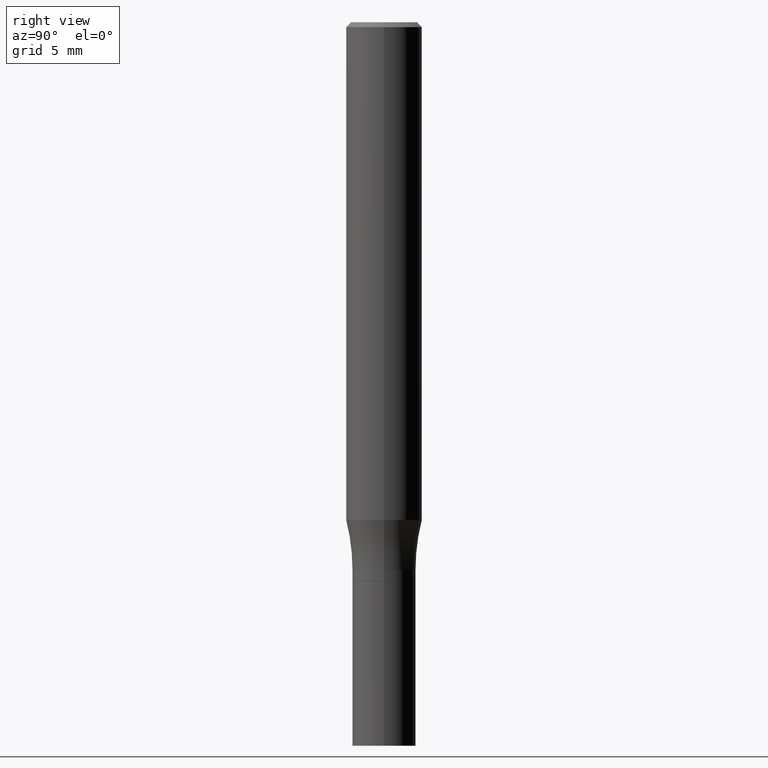
[diagram: clean part render]
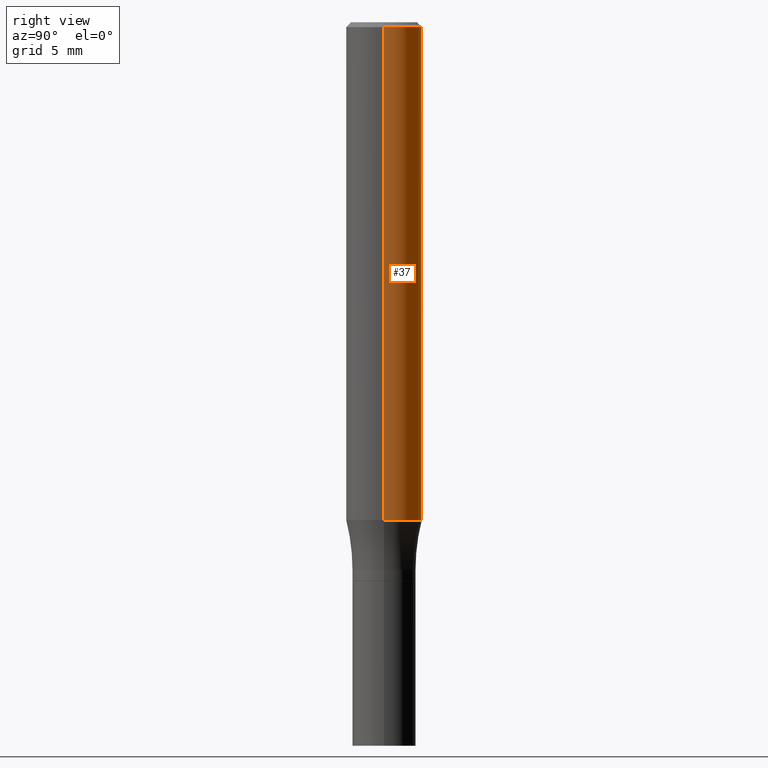
[diagram: same view with one face highlighted and labeled with its STEP entity id]
A machine part, right view. The second image highlights one B-rep face of the part: STEP entity #37.
In plain terms, the highlighted cylindrical surface (partial cylindrical patch) has radius 2.9997 mm, axis along (-0, 0, 1).
Its self-contained STEP definition (entity closure, byte-faithful):
#10 = CARTESIAN_POINT ( 'NONE',  ( -0.1180999999999999966, -4.550343100563697850E-15, -1.543612452267068891 ) ) ;
#28 = FACE_OUTER_BOUND ( 'NONE', #49, .T. ) ;
#37 = ADVANCED_FACE ( 'NONE', ( #28 ), #93, .T. ) ;
#41 = EDGE_CURVE ( 'NONE', #301, #456, #90, .T. ) ;
#43 = DIRECTION ( 'NONE',  ( -2.445468806185136597E-29, 3.491481338843145583E-15, 1.000000000000000000 ) ) ;
#49 = EDGE_LOOP ( 'NONE', ( #382, #347, #193, #235 ) ) ;
#58 = VERTEX_POINT ( 'NONE', #249 ) ;
#70 = VECTOR ( 'NONE', #238, 39.37007874015748143 ) ;
#90 = LINE ( 'NONE', #199, #70 ) ;
#93 = CYLINDRICAL_SURFACE ( 'NONE', #280, 0.1181000000000000105 ) ;
#110 = CARTESIAN_POINT ( 'NONE',  ( 3.774856100858060618E-29, -5.389494071496376836E-15, -1.543612452267068891 ) ) ;
#131 = EDGE_CURVE ( 'NONE', #58, #301, #310, .T. ) ;
#148 = CARTESIAN_POINT ( 'NONE',  ( 0.1181000000000000105, -8.246878922347482626E-16, 5.758764772215001141E-30 ) ) ;
#157 = AXIS2_PLACEMENT_3D ( 'NONE', #110, #221, #369 ) ;
#182 = DIRECTION ( 'NONE',  ( -2.445468806185136877E-29, 3.491481338843145188E-15, 1.000000000000000000 ) ) ;
#188 = EDGE_CURVE ( 'NONE', #58, #423, #218, .T. ) ;
#190 = AXIS2_PLACEMENT_3D ( 'NONE', #407, #43, #215 ) ;
#193 = ORIENTED_EDGE ( 'NONE', *, *, #395, .F. ) ;
#199 = CARTESIAN_POINT ( 'NONE',  ( -0.1181000000000000105, 8.391509709326783943E-16, -5.809262341591044484E-30 ) ) ;
#215 = DIRECTION ( 'NONE',  ( 1.000000000000000000, -6.982962677686266711E-15, 0.000000000000000000 ) ) ;
#218 = LINE ( 'NONE', #148, #367 ) ;
#221 = DIRECTION ( 'NONE',  ( -2.445468806185136597E-29, 3.491481338843145583E-15, 1.000000000000000000 ) ) ;
#222 = CARTESIAN_POINT ( 'NONE',  ( 0.1180999999999999966, -8.625970336194650129E-16, -0.01499999999999999944 ) ) ;
#235 = ORIENTED_EDGE ( 'NONE', *, *, #188, .F. ) ;
#238 = DIRECTION ( 'NONE',  ( -2.445468806185136877E-29, 3.491481338843145188E-15, 1.000000000000000000 ) ) ;
#249 = CARTESIAN_POINT ( 'NONE',  ( 0.1180999999999999966, -6.214181963731125887E-15, -1.543612452267068891 ) ) ;
#280 = AXIS2_PLACEMENT_3D ( 'NONE', #415, #354, #424 ) ;
#297 = CIRCLE ( 'NONE', #190, 0.1180999999999999966 ) ;
#301 = VERTEX_POINT ( 'NONE', #10 ) ;
#310 = CIRCLE ( 'NONE', #157, 0.1181000000000000383 ) ;
#347 = ORIENTED_EDGE ( 'NONE', *, *, #41, .T. ) ;
#354 = DIRECTION ( 'NONE',  ( -2.445468806185136597E-29, 3.491481338843145583E-15, 1.000000000000000000 ) ) ;
#367 = VECTOR ( 'NONE', #182, 39.37007874015748143 ) ;
#369 = DIRECTION ( 'NONE',  ( 1.000000000000000000, -6.982962677686270655E-15, 0.000000000000000000 ) ) ;
#382 = ORIENTED_EDGE ( 'NONE', *, *, #131, .T. ) ;
#395 = EDGE_CURVE ( 'NONE', #423, #456, #297, .T. ) ;
#407 = CARTESIAN_POINT ( 'NONE',  ( 3.668203209277705088E-31, -5.237222008264718399E-17, -0.01499999999999999944 ) ) ;
#415 = CARTESIAN_POINT ( 'NONE',  ( 0.000000000000000000, 0.000000000000000000, 0.000000000000000000 ) ) ;
#423 = VERTEX_POINT ( 'NONE', #222 ) ;
#424 = DIRECTION ( 'NONE',  ( 1.000000000000000000, -6.982962677686267499E-15, 4.876176775795936353E-29 ) ) ;
#442 = CARTESIAN_POINT ( 'NONE',  ( -0.1180999999999999966, 7.723156721521009862E-16, -0.01499999999999999944 ) ) ;
#456 = VERTEX_POINT ( 'NONE', #442 ) ;